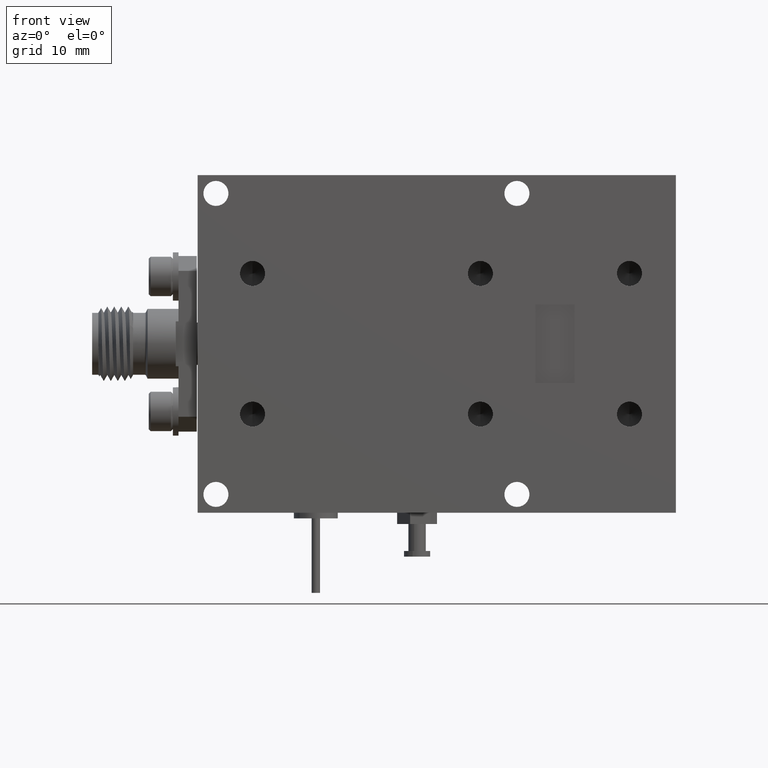
[diagram: clean part render]
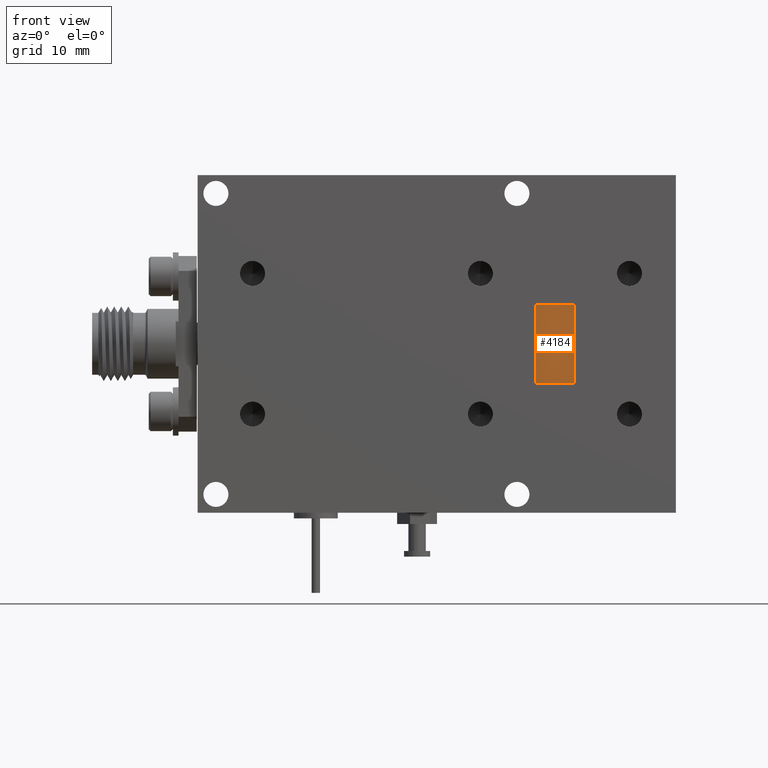
[diagram: same view with one face highlighted and labeled with its STEP entity id]
A machine part, front view. The second image highlights one B-rep face of the part: STEP entity #4184.
In plain terms, the highlighted planar face has unit normal (-0, 1, -0).
Its self-contained STEP definition (entity closure, byte-faithful):
#8 = CARTESIAN_POINT ( 'NONE',  ( 0.7399999999999998800, 0.009999999999999688000, -4.076851852909745900E-017 ) ) ;
#1177 = VECTOR ( 'NONE', #12617, 39.37007874015748100 ) ;
#1637 = LINE ( 'NONE', #2939, #1976 ) ;
#1976 = VECTOR ( 'NONE', #3986, 39.37007874015748100 ) ;
#2853 = EDGE_CURVE ( 'NONE', #12073, #11489, #13216, .T. ) ;
#2916 = VERTEX_POINT ( 'NONE', #9989 ) ;
#2923 = PLANE ( 'NONE',  #11736 ) ;
#2939 = CARTESIAN_POINT ( 'NONE',  ( 0.7399999999999999900, 0.009999999999999688000, 0.1399999999999997600 ) ) ;
#3366 = DIRECTION ( 'NONE',  ( 1.000000000000000000, 7.190793817198521200E-016, 1.729876020729457300E-016 ) ) ;
#3733 = EDGE_CURVE ( 'NONE', #4227, #2916, #1637, .T. ) ;
#3962 = LINE ( 'NONE', #8, #1177 ) ;
#3986 = DIRECTION ( 'NONE',  ( -1.000000000000000000, -7.190793817198521200E-016, -1.729876020729457300E-016 ) ) ;
#4184 = ADVANCED_FACE ( 'NONE', ( #6050 ), #2923, .F. ) ;
#4227 = VERTEX_POINT ( 'NONE', #7036 ) ;
#4377 = DIRECTION ( 'NONE',  ( 1.220121397337784700E-016, 5.831584850475314000E-017, 1.000000000000000000 ) ) ;
#5411 = CARTESIAN_POINT ( 'NONE',  ( 0.7399999999999999900, 0.009999999999999655000, -0.1400000000000002400 ) ) ;
#5511 = ORIENTED_EDGE ( 'NONE', *, *, #2853, .T. ) ;
#5702 = EDGE_CURVE ( 'NONE', #12073, #2916, #12126, .T. ) ;
#5783 = EDGE_LOOP ( 'NONE', ( #9380, #8429, #8327, #5511 ) ) ;
#6050 = FACE_OUTER_BOUND ( 'NONE', #5783, .T. ) ;
#6576 = VECTOR ( 'NONE', #4377, 39.37007874015748100 ) ;
#6996 = DIRECTION ( 'NONE',  ( 1.729876020729461700E-016, -5.024050583548157100E-016, -1.000000000000000000 ) ) ;
#7036 = CARTESIAN_POINT ( 'NONE',  ( 0.7399999999999999900, 0.009999999999999722700, 0.1399999999999997600 ) ) ;
#8327 = ORIENTED_EDGE ( 'NONE', *, *, #5702, .F. ) ;
#8429 = ORIENTED_EDGE ( 'NONE', *, *, #3733, .T. ) ;
#8977 = EDGE_CURVE ( 'NONE', #4227, #11489, #3962, .T. ) ;
#9380 = ORIENTED_EDGE ( 'NONE', *, *, #8977, .F. ) ;
#9989 = CARTESIAN_POINT ( 'NONE',  ( 0.5999999999999999800, 0.009999999999999585600, 0.1399999999999997400 ) ) ;
#10044 = CARTESIAN_POINT ( 'NONE',  ( 0.6000000000000002000, 0.009999999999999552600, -0.6000000000000000900 ) ) ;
#10488 = CARTESIAN_POINT ( 'NONE',  ( 0.5999999999999999800, 0.009999999999999552600, -0.1400000000000002400 ) ) ;
#10530 = CARTESIAN_POINT ( 'NONE',  ( 0.5999999999999999800, 0.009999999999999552600, -0.1759695971004788500 ) ) ;
#10595 = CARTESIAN_POINT ( 'NONE',  ( 0.7399999999999997700, 0.009999999999999688000, -0.1400000000000003700 ) ) ;
#11489 = VERTEX_POINT ( 'NONE', #10595 ) ;
#11736 = AXIS2_PLACEMENT_3D ( 'NONE', #10044, #12288, #6996 ) ;
#12073 = VERTEX_POINT ( 'NONE', #10488 ) ;
#12126 = LINE ( 'NONE', #10530, #6576 ) ;
#12288 = DIRECTION ( 'NONE',  ( -7.190793817198521200E-016, 1.000000000000000000, -5.024050583548158100E-016 ) ) ;
#12415 = VECTOR ( 'NONE', #3366, 39.37007874015748100 ) ;
#12617 = DIRECTION ( 'NONE',  ( -4.170118815405028100E-016, -5.831584850475335000E-017, -1.000000000000000000 ) ) ;
#13216 = LINE ( 'NONE', #5411, #12415 ) ;